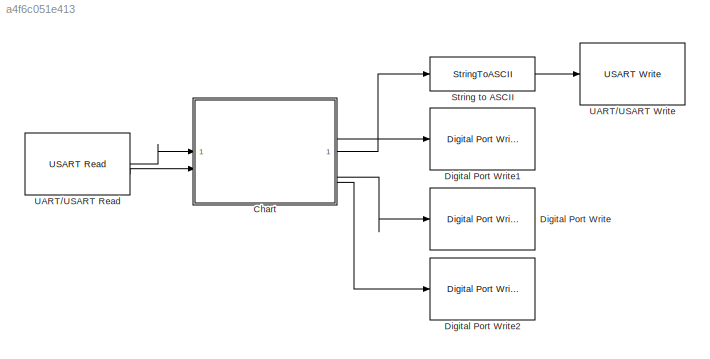
MODEL slx_a4f6c051e413
KIND model
CONFIG AbsTol = auto
CONFIG EnableMultiTasking = on
CONFIG FixedStep = 0.1
CONFIG MaxStep = auto
CONFIG MinStep = auto
CONFIG RelTol = 1e-3
CONFIG SampleTimeConstraint = Unconstrained
CONFIG SolverName = FixedStepDiscrete
CONFIG StartTime = 0.0
CONFIG StopTime = 10.0
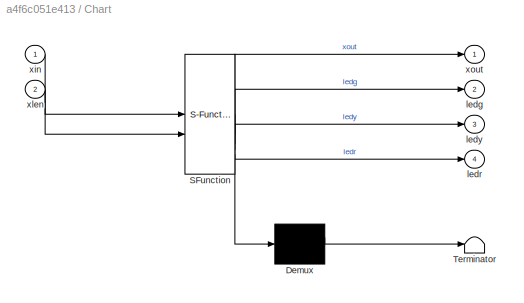
BLOCK [SubSystem] Chart
  ErrorFcn = Stateflow.Translate.translate
  PermitHierarchicalResolution = ExplicitOnly
  SFBlockType = Chart
  TreatAsAtomicUnit = on
BLOCK [Demux] Chart/ Demux 
  Outputs = 1
BLOCK [S-Function] Chart/ SFunction 
  EnableBusSupport = on
  FunctionName = sf_sfun
  PortCounts = [2 5]
  SFcnIsStateOwnerBlock = off
  SFunctionDeploymentMode = off
  Tag = Stateflow S-Function 3
BLOCK [Terminator] Chart/ Terminator 
BLOCK [Outport] Chart/ledg
  Port = 2
BLOCK [Outport] Chart/ledr
  Port = 4
BLOCK [Outport] Chart/ledy
  Port = 3
BLOCK [Inport] Chart/xin
BLOCK [Inport] Chart/xlen
  Port = 2
BLOCK [Outport] Chart/xout
BLOCK [Reference] Digital Port Write  REF=stm32f4xxblockslib/Digital Port Write
  LibrarySourceBlock = stm32g4xxblockslib/Digital Port Write
  SourceBlock = stm32f4xxblockslib/Digital Port Write
  SourceType = stm32cube.blocks.DigitalPortWrite
BLOCK [Reference] Digital Port Write1  REF=stm32f4xxblockslib/Digital Port Write
  LibrarySourceBlock = stm32g4xxblockslib/Digital Port Write
  SourceBlock = stm32f4xxblockslib/Digital Port Write
  SourceType = stm32cube.blocks.DigitalPortWrite
BLOCK [Reference] Digital Port Write2  REF=stm32f4xxblockslib/Digital Port Write
  LibrarySourceBlock = stm32g4xxblockslib/Digital Port Write
  SourceBlock = stm32f4xxblockslib/Digital Port Write
  SourceType = stm32cube.blocks.DigitalPortWrite
BLOCK [StringToASCII] String to ASCII
  OutputVectorSize = 3
BLOCK [Reference] UART//USART Read  REF=stm32blockslib/UART//USART Read
  LibrarySourceBlock = stm32g4xxblockslib/UART//USART Read
  SourceBlock = stm32blockslib/UART//USART Read
  SourceType = stm32cube.blocks.UARTRead
BLOCK [Reference] UART//USART Write  REF=stm32blockslib/UART//USART Write
  LibrarySourceBlock = stm32g4xxblockslib/UART//USART Write
  SourceBlock = stm32blockslib/UART//USART Write
  SourceType = stm32cube.blocks.UARTWrite
LINE Chart:1 -> String to ASCII:1
LINE Chart:2 -> Digital Port Write1:1
LINE Chart:3 -> Digital Port Write:1
LINE Chart:4 -> Digital Port Write2:1
LINE String to ASCII:1 -> UART//USART Write:1
LINE UART//USART Read:1 -> Chart:1
LINE UART//USART Read:2 -> Chart:2
CHART Chart states=4 transitions=8
  STATE_LABEL 'waiting_a\nen: ledg = ON;\nex: ledg = OFF;'
  STATE_LABEL 'waiting_b\nen: ledy = ON;\nex: ledy = OFF;'
  STATE_LABEL 'out\nen: xout="eos";\nex: xout="";'
  STATE_LABEL 'waiting_c\nen: ledr = ON;\nex: ledr = OFF;'
CHART  states=0 transitions=0
